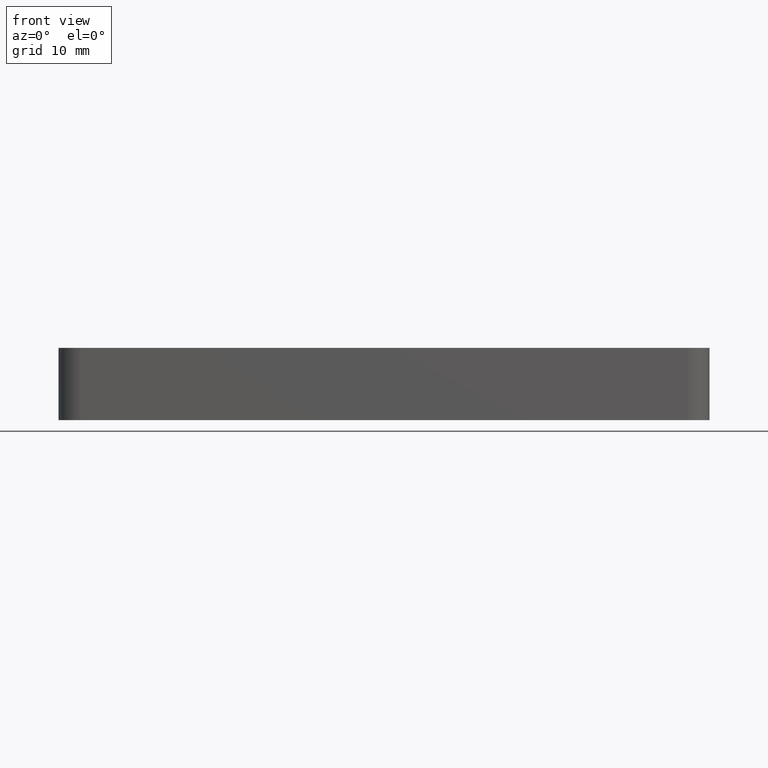
[diagram: clean part render]
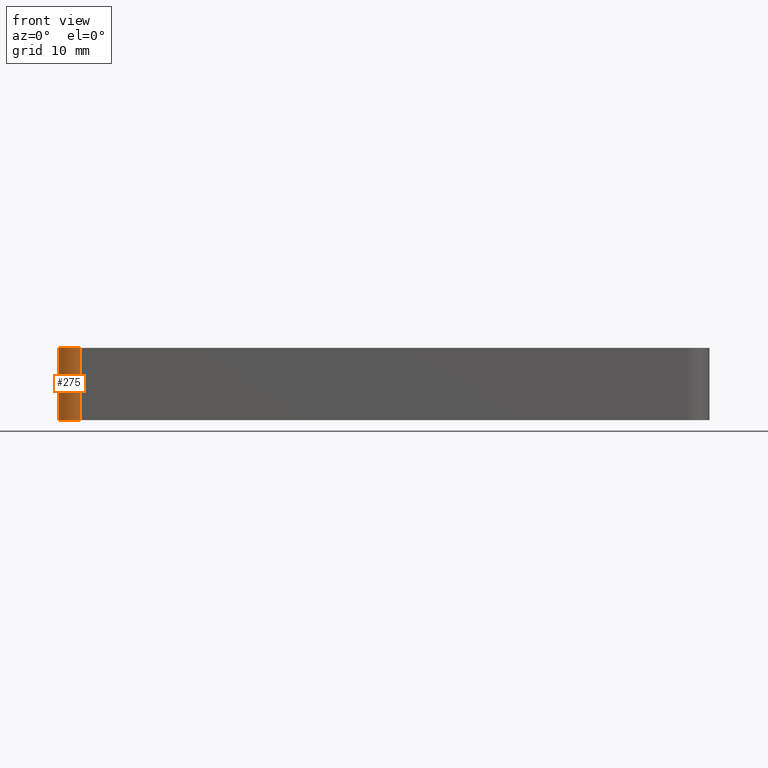
[diagram: same view with one face highlighted and labeled with its STEP entity id]
A machine part, front view. The second image highlights one B-rep face of the part: STEP entity #275.
In plain terms, the highlighted cylindrical surface (edge-blend (fillet) strip) has radius 3 mm, axis along (0, 0, 1).
Its self-contained STEP definition (entity closure, byte-faithful):
#41=FACE_OUTER_BOUND('',#61,.T.);
#61=EDGE_LOOP('',(#220,#221,#222,#223));
#94=LINE('',#458,#110);
#95=LINE('',#459,#111);
#110=VECTOR('',#369,10.);
#111=VECTOR('',#370,10.);
#117=CIRCLE('',#294,3.);
#124=CIRCLE('',#304,3.);
#139=VERTEX_POINT('',#429);
#140=VERTEX_POINT('',#431);
#149=VERTEX_POINT('',#455);
#150=VERTEX_POINT('',#456);
#167=EDGE_CURVE('',#140,#139,#117,.T.);
#179=EDGE_CURVE('',#149,#150,#124,.T.);
#180=EDGE_CURVE('',#150,#140,#94,.T.);
#181=EDGE_CURVE('',#139,#149,#95,.T.);
#220=ORIENTED_EDGE('',*,*,#179,.T.);
#221=ORIENTED_EDGE('',*,*,#180,.T.);
#222=ORIENTED_EDGE('',*,*,#167,.T.);
#223=ORIENTED_EDGE('',*,*,#181,.T.);
#263=CYLINDRICAL_SURFACE('',#303,3.);
#275=ADVANCED_FACE('',(#41),#263,.T.);
#294=AXIS2_PLACEMENT_3D('',#432,#342,#343);
#303=AXIS2_PLACEMENT_3D('',#454,#365,#366);
#304=AXIS2_PLACEMENT_3D('',#457,#367,#368);
#342=DIRECTION('center_axis',(0.,0.,1.));
#343=DIRECTION('ref_axis',(-0.707106781186549,-0.707106781186546,0.));
#365=DIRECTION('center_axis',(0.,0.,1.));
#366=DIRECTION('ref_axis',(-0.707106781186549,-0.707106781186546,0.));
#367=DIRECTION('center_axis',(0.,0.,-1.));
#368=DIRECTION('ref_axis',(-0.707106781186549,-0.707106781186546,0.));
#369=DIRECTION('',(0.,0.,-1.));
#370=DIRECTION('',(0.,0.,1.));
#429=CARTESIAN_POINT('',(-42.,-22.5,0.));
#431=CARTESIAN_POINT('',(-45.,-19.5,0.));
#432=CARTESIAN_POINT('Origin',(-42.,-19.5,0.));
#454=CARTESIAN_POINT('Origin',(-42.,-19.5,0.));
#455=CARTESIAN_POINT('',(-42.,-22.5,10.));
#456=CARTESIAN_POINT('',(-45.,-19.5,10.));
#457=CARTESIAN_POINT('Origin',(-42.,-19.5,10.));
#458=CARTESIAN_POINT('',(-45.,-19.5,0.));
#459=CARTESIAN_POINT('',(-42.,-22.5,0.));